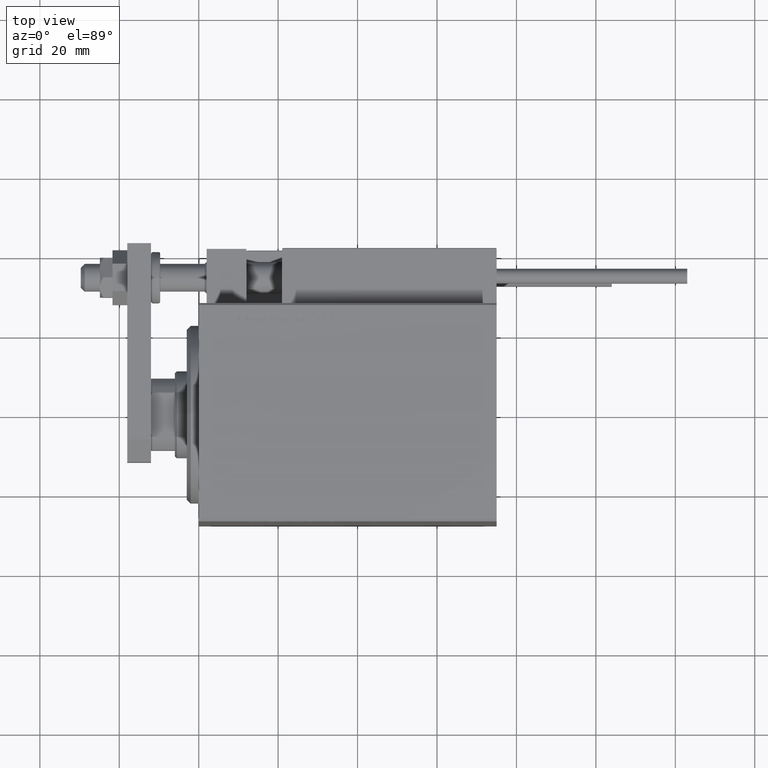
[diagram: clean part render]
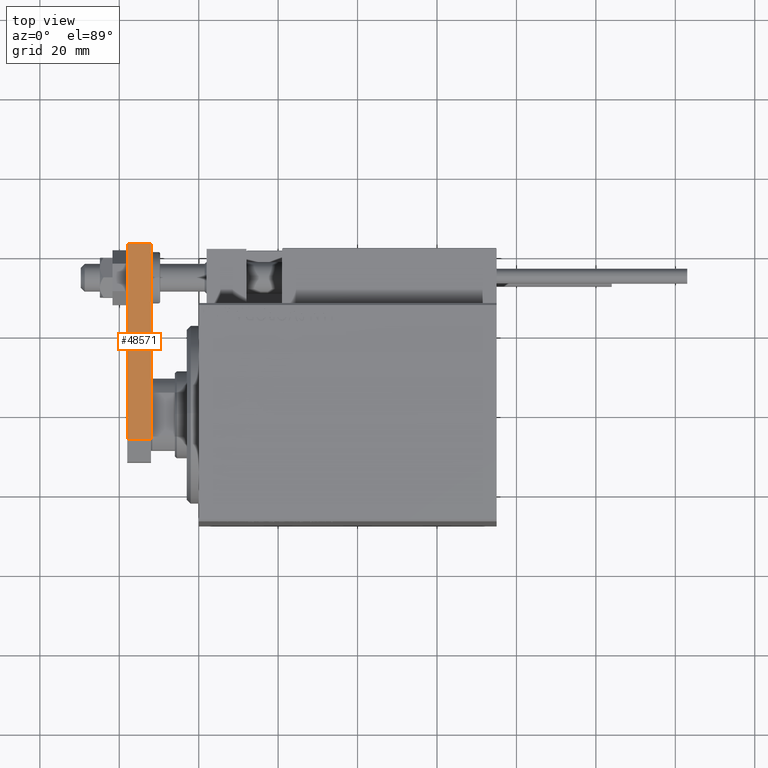
[diagram: same view with one face highlighted and labeled with its STEP entity id]
A machine part, top view. The second image highlights one B-rep face of the part: STEP entity #48571.
In plain terms, the highlighted planar face has unit normal (-0, -0, -1).
Its self-contained STEP definition (entity closure, byte-faithful):
#866 = DIRECTION ( 'NONE',  ( -6.308085367188389994E-17, 1.000000000000000000, 0.000000000000000000 ) ) ;
#1274 = CARTESIAN_POINT ( 'NONE',  ( 12.50000000000000000, 55.00000000000000000, 6.000000000000000000 ) ) ;
#2854 = CARTESIAN_POINT ( 'NONE',  ( 12.50000000000000355, 5.659999999999991260, 6.000000000000000000 ) ) ;
#3026 = CARTESIAN_POINT ( 'NONE',  ( 12.50000000000000000, 55.00000000000000000, 0.000000000000000000 ) ) ;
#4395 = DIRECTION ( 'NONE',  ( 0.000000000000000000, 0.000000000000000000, -1.000000000000000000 ) ) ;
#7600 = LINE ( 'NONE', #39817, #18589 ) ;
#8414 = LINE ( 'NONE', #36463, #40185 ) ;
#9092 = VERTEX_POINT ( 'NONE', #2854 ) ;
#9957 = ORIENTED_EDGE ( 'NONE', *, *, #47092, .T. ) ;
#15667 = DIRECTION ( 'NONE',  ( -6.308085367188389994E-17, 1.000000000000000000, 0.000000000000000000 ) ) ;
#17085 = CARTESIAN_POINT ( 'NONE',  ( 12.50000000000000355, 5.659999999999991260, 0.000000000000000000 ) ) ;
#18112 = EDGE_CURVE ( 'NONE', #9092, #28019, #8414, .T. ) ;
#18226 = DIRECTION ( 'NONE',  ( -1.000000000000000000, -6.308085367188389994E-17, 0.000000000000000000 ) ) ;
#18589 = VECTOR ( 'NONE', #15667, 1000.000000000000000 ) ;
#22926 = VECTOR ( 'NONE', #29596, 1000.000000000000000 ) ;
#25432 = ORIENTED_EDGE ( 'NONE', *, *, #18112, .F. ) ;
#28019 = VERTEX_POINT ( 'NONE', #1274 ) ;
#28589 = ORIENTED_EDGE ( 'NONE', *, *, #48887, .F. ) ;
#28755 = AXIS2_PLACEMENT_3D ( 'NONE', #30674, #18226, #42373 ) ;
#29596 = DIRECTION ( 'NONE',  ( -0.000000000000000000, -0.000000000000000000, -1.000000000000000000 ) ) ;
#30674 = CARTESIAN_POINT ( 'NONE',  ( 12.50000000000000355, 4.814824860968089633E-32, 6.000000000000000000 ) ) ;
#33801 = PLANE ( 'NONE',  #28755 ) ;
#35582 = LINE ( 'NONE', #39735, #51081 ) ;
#36463 = CARTESIAN_POINT ( 'NONE',  ( 12.50000000000000355, 4.814824860968089633E-32, 6.000000000000000000 ) ) ;
#37026 = ORIENTED_EDGE ( 'NONE', *, *, #37984, .T. ) ;
#37984 = EDGE_CURVE ( 'NONE', #49952, #40136, #7600, .T. ) ;
#39735 = CARTESIAN_POINT ( 'NONE',  ( 12.50000000000000355, 5.659999999999991260, 6.000000000000000000 ) ) ;
#39817 = CARTESIAN_POINT ( 'NONE',  ( 12.50000000000000355, 4.814824860968089633E-32, 0.000000000000000000 ) ) ;
#40136 = VERTEX_POINT ( 'NONE', #3026 ) ;
#40185 = VECTOR ( 'NONE', #866, 1000.000000000000000 ) ;
#42373 = DIRECTION ( 'NONE',  ( 6.308085367188389994E-17, -1.000000000000000000, 0.000000000000000000 ) ) ;
#43661 = EDGE_LOOP ( 'NONE', ( #25432, #9957, #37026, #28589 ) ) ;
#45442 = LINE ( 'NONE', #49327, #22926 ) ;
#47092 = EDGE_CURVE ( 'NONE', #9092, #49952, #35582, .T. ) ;
#48571 = ADVANCED_FACE ( 'NONE', ( #49641 ), #33801, .F. ) ;
#48887 = EDGE_CURVE ( 'NONE', #28019, #40136, #45442, .T. ) ;
#49327 = CARTESIAN_POINT ( 'NONE',  ( 12.50000000000000000, 55.00000000000000000, 6.000000000000000000 ) ) ;
#49641 = FACE_OUTER_BOUND ( 'NONE', #43661, .T. ) ;
#49952 = VERTEX_POINT ( 'NONE', #17085 ) ;
#51081 = VECTOR ( 'NONE', #4395, 1000.000000000000000 ) ;